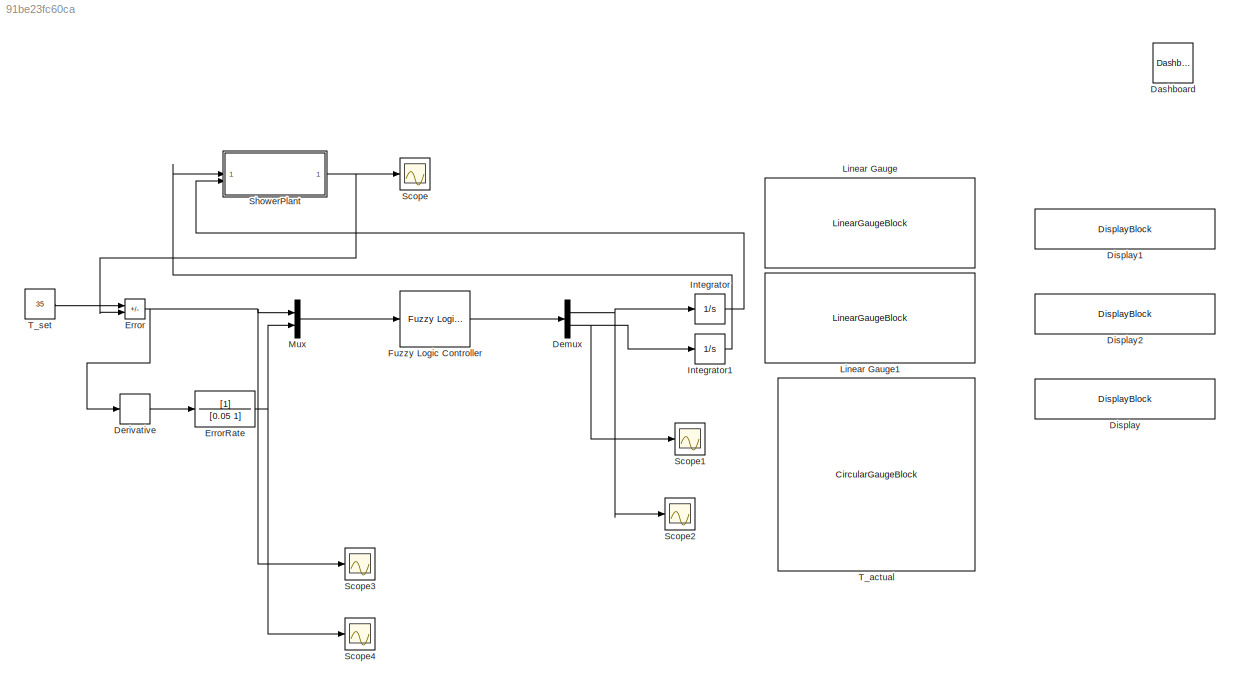
MODEL slx_91be23fc60ca
KIND model
CONFIG AbsTol = auto
CONFIG EnableMultiTasking = off
CONFIG FixedStep = auto
CONFIG MaxStep = auto
CONFIG MinStep = auto
CONFIG RelTol = 1e-3
CONFIG SampleTimeConstraint = Unconstrained
CONFIG SolverName = VariableStepAuto
CONFIG StartTime = 0.0
CONFIG StopTime = 100
BLOCK [Reference] Dashboard  REF=simulink/Dashboard
  SourceBlock = simulink/Dashboard
BLOCK [Demux] Demux
  Outputs = 2
BLOCK [Derivative] Derivative
BLOCK [DisplayBlock] Display
  LabelPosition = Hide
  Transparency = 1
BLOCK [DisplayBlock] Display1
  LabelPosition = Hide
  Transparency = 1
BLOCK [DisplayBlock] Display2
  LabelPosition = Hide
  Transparency = 1
BLOCK [Sum] Error
  IconShape = rectangular
  Inputs = +-
BLOCK [TransferFcn] ErrorRate
  Denominator = [0.05 1]
BLOCK [Reference] Fuzzy Logic Controller  REF=fuzblock/Fuzzy Logic   (lib defined in mdl_858b3b3e7478)
Controller
  SourceBlock = fuzblock/Fuzzy Logic \nController
  SourceType = Fuzzy Inference System
BLOCK [Integrator] Integrator
  InitialCondition = 0.25
BLOCK [Integrator] Integrator1
  InitialCondition = 0.25
BLOCK [LinearGaugeBlock] Linear Gauge
  ScaleMax = 1
  ScaleMin = -1
BLOCK [LinearGaugeBlock] Linear Gauge1
  ScaleMax = 1
  ScaleMin = -1
BLOCK [Mux] Mux
  DisplayOption = bar
  Inputs = 2
BLOCK [Scope] Scope
  Floating = off
  NumInputPorts = 1
  ScopeSpecificationString = Simulink.scopes.TimeScopeBlockCfg('CurrentConfiguration', extmgr.ConfigurationSet(extmgr.Configuration('Core','General UI',true),extmgr.Configuration('Core','Source UI',true),extmgr.Configuration('Sources','WiredSimulink',true),extmgr.Configuration('Visuals','Time Domain',true,'SerializedDisplays',{struct('MinYLimReal','-3.7644','MaxYLimReal','33.87963','YLabelReal','','MinYLimMag','0.00000','MaxY...<+1422ch>
BLOCK [Scope] Scope1
  Floating = off
  NumInputPorts = 1
  ScopeSpecificationString = Simulink.scopes.TimeScopeBlockCfg('CurrentConfiguration', extmgr.ConfigurationSet(extmgr.Configuration('Core','General UI',true),extmgr.Configuration('Core','Source UI',true),extmgr.Configuration('Sources','WiredSimulink',true,'DataLoggingVariableName','ScopeData1'),extmgr.Configuration('Visuals','Time Domain',true,'SerializedDisplays',{struct('MinYLimReal','-0.90742','MaxYLimReal','0.83668','YLab...<+1455ch>
BLOCK [Scope] Scope2
  Floating = off
  NumInputPorts = 1
  ScopeSpecificationString = Simulink.scopes.TimeScopeBlockCfg('CurrentConfiguration', extmgr.ConfigurationSet(extmgr.Configuration('Core','General UI',true),extmgr.Configuration('Core','Source UI',true),extmgr.Configuration('Sources','WiredSimulink',true,'DataLoggingVariableName','ScopeData2'),extmgr.Configuration('Visuals','Time Domain',true,'SerializedDisplays',{struct('MinYLimReal','-0.77213','MaxYLimReal','0.34916','YLab...<+1455ch>
BLOCK [Scope] Scope3
  Floating = off
  NumInputPorts = 1
  ScopeSpecificationString = Simulink.scopes.TimeScopeBlockCfg('CurrentConfiguration', extmgr.ConfigurationSet(extmgr.Configuration('Core','General UI',true),extmgr.Configuration('Core','Source UI',true),extmgr.Configuration('Sources','WiredSimulink',true,'DataLoggingVariableName','ScopeData3'),extmgr.Configuration('Visuals','Time Domain',true,'SerializedDisplays',{struct('MinYLimReal','-23.87963','MaxYLimReal','13.7644','YLa...<+1457ch>
BLOCK [Scope] Scope4
  Floating = off
  NumInputPorts = 1
  ScopeSpecificationString = Simulink.scopes.TimeScopeBlockCfg('CurrentConfiguration', extmgr.ConfigurationSet(extmgr.Configuration('Core','General UI',true),extmgr.Configuration('Core','Source UI',true),extmgr.Configuration('Sources','WiredSimulink',true,'DataLoggingVariableName','ScopeData4'),extmgr.Configuration('Visuals','Time Domain',true,'SerializedDisplays',{struct('MinYLimReal','-17.52945','MaxYLimReal','5.06149','YLa...<+1461ch>
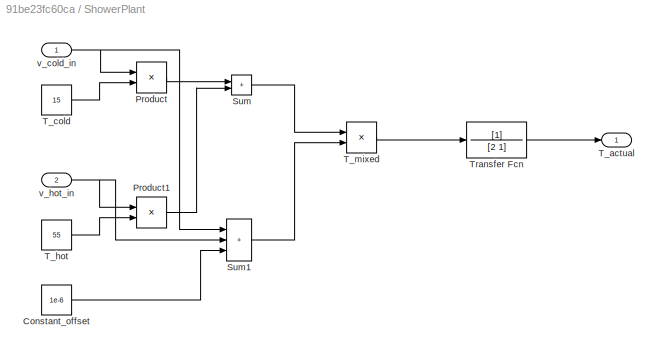
BLOCK [SubSystem] ShowerPlant
BLOCK [Constant] ShowerPlant/Constant_offset
  Value = 1e-6
BLOCK [Product] ShowerPlant/Product
BLOCK [Product] ShowerPlant/Product1
BLOCK [Sum] ShowerPlant/Sum
  IconShape = rectangular
BLOCK [Sum] ShowerPlant/Sum1
  IconShape = rectangular
  Inputs = ++|+
BLOCK [Outport] ShowerPlant/T_actual
BLOCK [Constant] ShowerPlant/T_cold
  Value = 15
BLOCK [Constant] ShowerPlant/T_hot
  Value = 55
BLOCK [Product] ShowerPlant/T_mixed
  Inputs = */
BLOCK [TransferFcn] ShowerPlant/Transfer Fcn
  Denominator = [2 1]
BLOCK [Inport] ShowerPlant/v_cold_in
BLOCK [Inport] ShowerPlant/v_hot_in
  Port = 2
BLOCK [CircularGaugeBlock] T_actual
  TickInterval = 5
BLOCK [Constant] T_set
  Value = 35
NET Demux:1 -> Integrator:1, Scope2:1
NET Demux:2 -> Integrator1:1, Scope1:1
LINE Derivative:1 -> ErrorRate:1
NET Error:1 -> Derivative:1, Mux:1, Scope3:1
NET ErrorRate:1 -> Mux:2, Scope4:1
LINE Fuzzy Logic Controller:1 -> Demux:1
LINE Integrator1:1 -> ShowerPlant:1
LINE Integrator:1 -> ShowerPlant:2
LINE Mux:1 -> Fuzzy Logic Controller:1
LINE ShowerPlant/Constant_offset:1 -> ShowerPlant/Sum1:3
LINE ShowerPlant/Product1:1 -> ShowerPlant/Sum:2
LINE ShowerPlant/Product:1 -> ShowerPlant/Sum:1
LINE ShowerPlant/Sum1:1 -> ShowerPlant/T_mixed:2
LINE ShowerPlant/Sum:1 -> ShowerPlant/T_mixed:1
LINE ShowerPlant/T_cold:1 -> ShowerPlant/Product:2
LINE ShowerPlant/T_hot:1 -> ShowerPlant/Product1:2
LINE ShowerPlant/T_mixed:1 -> ShowerPlant/Transfer Fcn:1
LINE ShowerPlant/Transfer Fcn:1 -> ShowerPlant/T_actual:1
NET ShowerPlant/v_cold_in:1 -> ShowerPlant/Product:1, ShowerPlant/Sum1:1
NET ShowerPlant/v_hot_in:1 -> ShowerPlant/Product1:1, ShowerPlant/Sum1:2
NET ShowerPlant:1 -> Error:2, Scope:1
LINE T_set:1 -> Error:1
note: NET lines group one-source signal fan-out (src -> all destinations, sorted); 1:1 wires keep LINE
